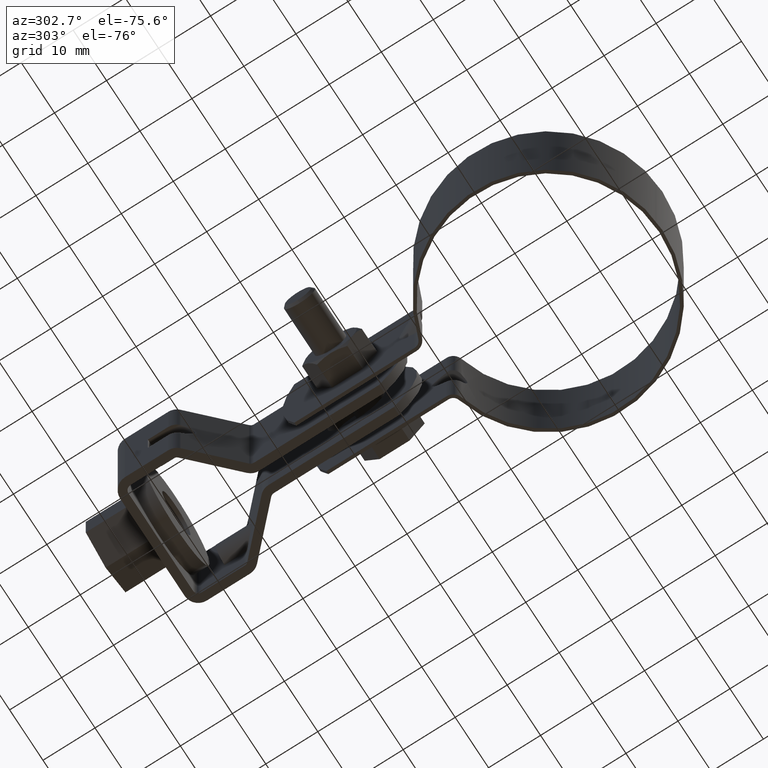
[diagram: clean part render]
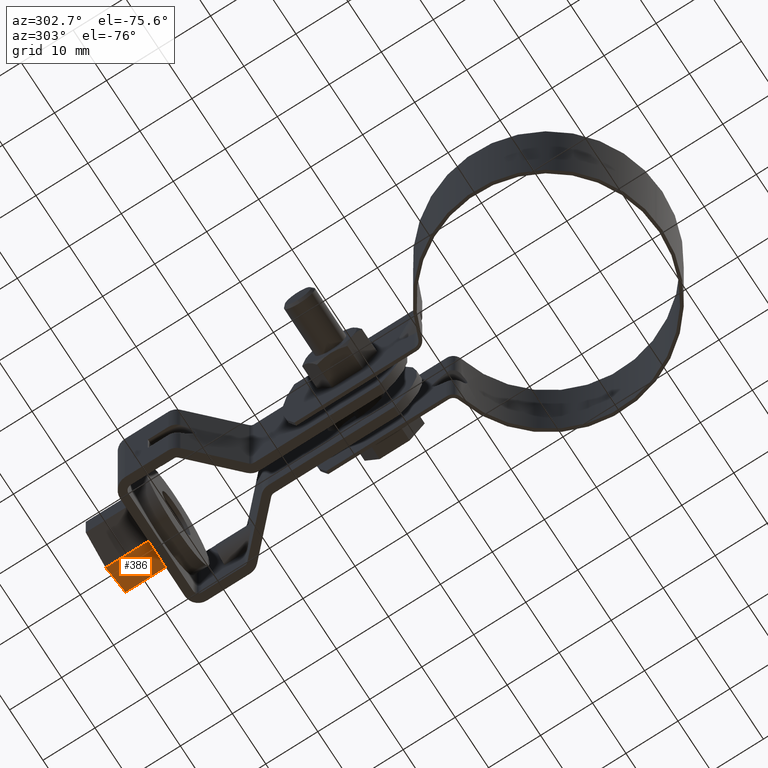
[diagram: same view with one face highlighted and labeled with its STEP entity id]
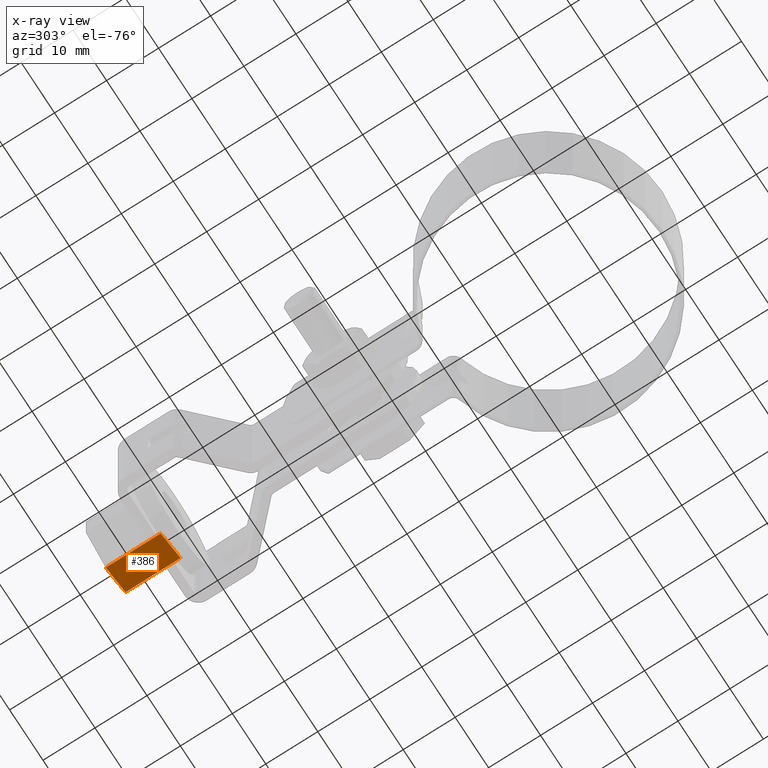
[diagram: x-ray of the same camera — body ghosted, the highlighted face saturated]
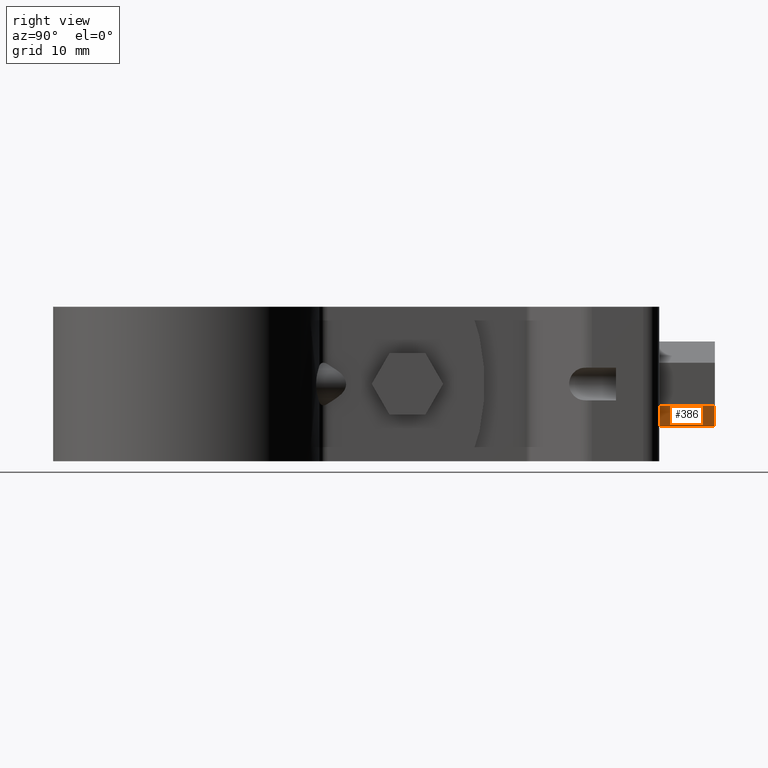
[diagram: same view with one face highlighted and labeled with its STEP entity id]
A machine part, auxiliary view. The second image highlights one B-rep face of the part: STEP entity #386.
The next image is the same camera in x-ray: the body ghosted, the highlighted face saturated — about 0% of this face is hidden behind the body in this view.
A second angle (right view) of the same face is appended — the face is thin or edge-on in the first view.
In plain terms, the highlighted planar face has unit normal (-0.5, -0, 0.866).
Its self-contained STEP definition (entity closure, byte-faithful):
#386 = ADVANCED_FACE( '', ( #655 ), #656, .F. );
#655 = FACE_OUTER_BOUND( '', #927, .T. );
#656 = PLANE( '', #928 );
#927 = EDGE_LOOP( '', ( #1910, #1911, #1912, #1913 ) );
#928 = AXIS2_PLACEMENT_3D( '', #1914, #1915, #1916 );
#1910 = ORIENTED_EDGE( '', *, *, #2235, .T. );
#1911 = ORIENTED_EDGE( '', *, *, #2248, .F. );
#1912 = ORIENTED_EDGE( '', *, *, #2249, .F. );
#1913 = ORIENTED_EDGE( '', *, *, #2246, .T. );
#1914 = CARTESIAN_POINT( '', ( 5.95000000379056, 85.1203728404709, -3.43523258490469 ) );
#1915 = DIRECTION( '', ( -0.499999999983745, -8.63897139172214E-009, 0.866025403793824 ) );
#1916 = DIRECTION( '', ( 0.866025403793824, -5.00386412104938E-009, 0.499999999983745 ) );
#2235 = EDGE_CURVE( '', #2757, #2755, #2758, .T. );
#2246 = EDGE_CURVE( '', #2776, #2757, #2777, .T. );
#2248 = EDGE_CURVE( '', #2779, #2755, #2780, .T. );
#2249 = EDGE_CURVE( '', #2776, #2779, #2781, .T. );
#2755 = VERTEX_POINT( '', #3631 );
#2757 = VERTEX_POINT( '', #3634 );
#2758 = LINE( '', #3635, #3636 );
#2776 = VERTEX_POINT( '', #3661 );
#2777 = LINE( '', #3662, #3663 );
#2779 = VERTEX_POINT( '', #3666 );
#2780 = LINE( '', #3667, #3668 );
#2781 = LINE( '', #3669, #3670 );
#3631 = CARTESIAN_POINT( '', ( 3.57780982907699E-009, 74.5203728748498, -6.87046679229640 ) );
#3634 = CARTESIAN_POINT( '', ( 5.95000000364229, 74.5203728404709, -3.43523269072979 ) );
#3635 = CARTESIAN_POINT( '', ( 5.95000000364229, 74.5203728404709, -3.43523269072980 ) );
#3636 = VECTOR( '', #4174, 1000.00000000000 );
#3661 = CARTESIAN_POINT( '', ( 5.95000000379055, 85.1203728404709, -3.43523258490468 ) );
#3662 = CARTESIAN_POINT( '', ( 5.95000000379055, 85.1203728404709, -3.43523258490468 ) );
#3663 = VECTOR( '', #4191, 1000.00000000000 );
#3666 = CARTESIAN_POINT( '', ( 3.72607998162716E-009, 85.1203728748498, -6.87046668647129 ) );
#3667 = CARTESIAN_POINT( '', ( 3.72607998162716E-009, 85.1203728748498, -6.87046668647129 ) );
#3668 = VECTOR( '', #4193, 1000.00000000000 );
#3669 = CARTESIAN_POINT( '', ( 5.95000000379056, 85.1203728404709, -3.43523258490469 ) );
#3670 = VECTOR( '', #4194, 1000.00000000000 );
#4174 = DIRECTION( '', ( -0.866025403793824, 5.00386412104938E-009, -0.499999999983745 ) );
#4191 = DIRECTION( '', ( -1.39877502405819E-011, -1.00000000000000, -9.98350074832280E-009 ) );
#4193 = DIRECTION( '', ( -1.39877502405819E-011, -1.00000000000000, -9.98350074832280E-009 ) );
#4194 = DIRECTION( '', ( -0.866025403793824, 5.00386412104938E-009, -0.499999999983745 ) );